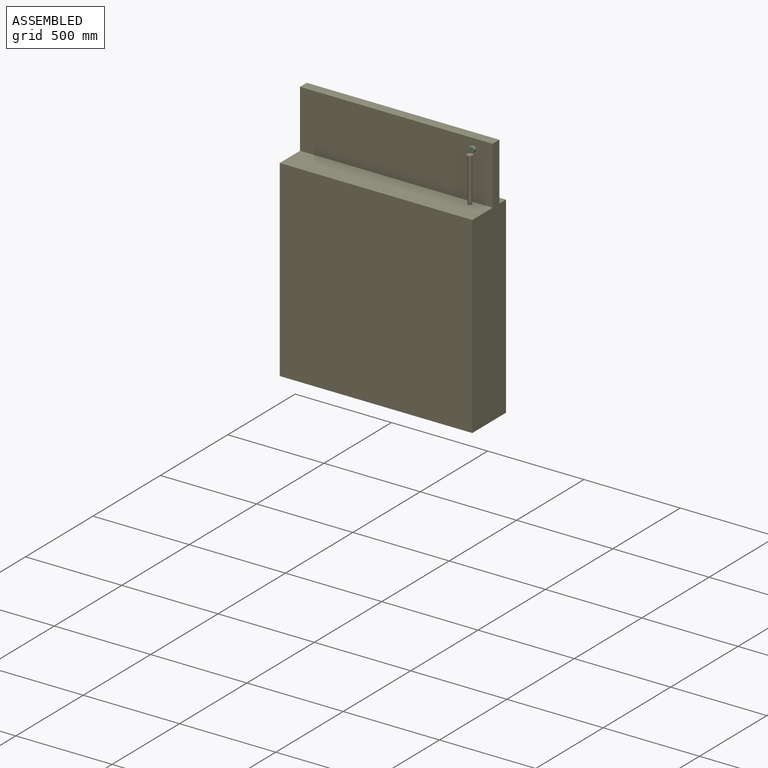
[diagram: assembled view]
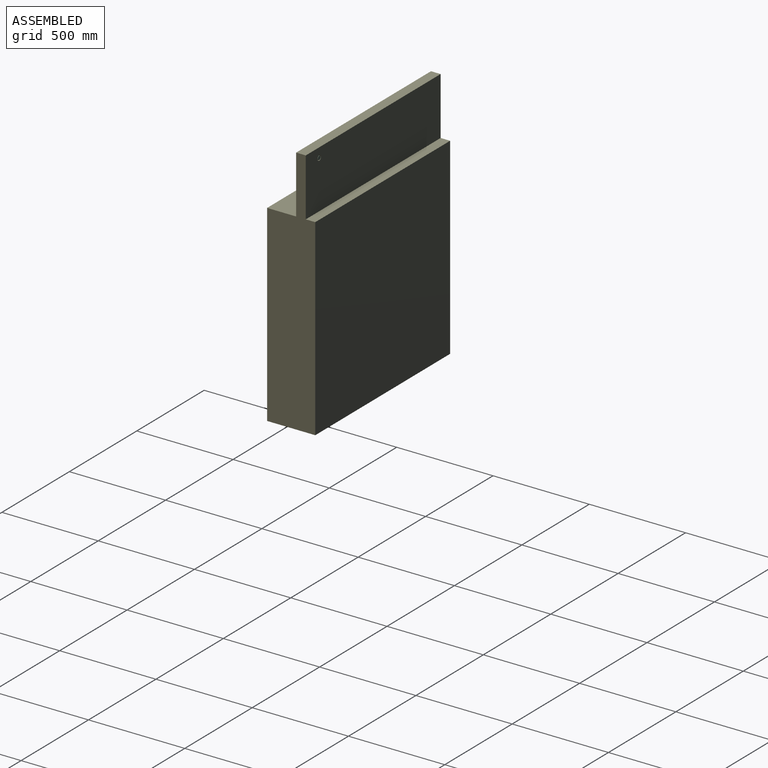
[diagram: assembled view, second angle]
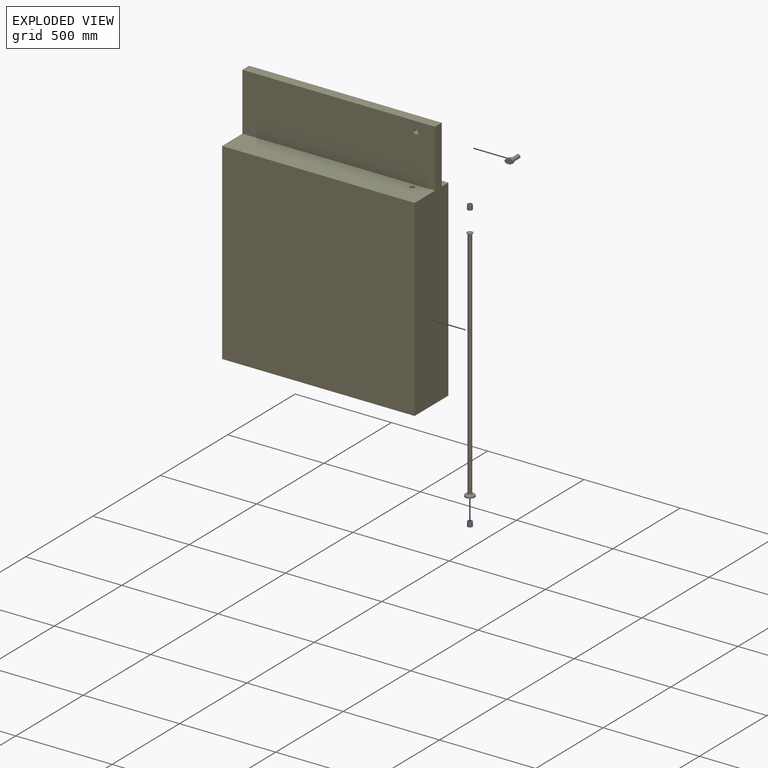
[diagram: exploded view]
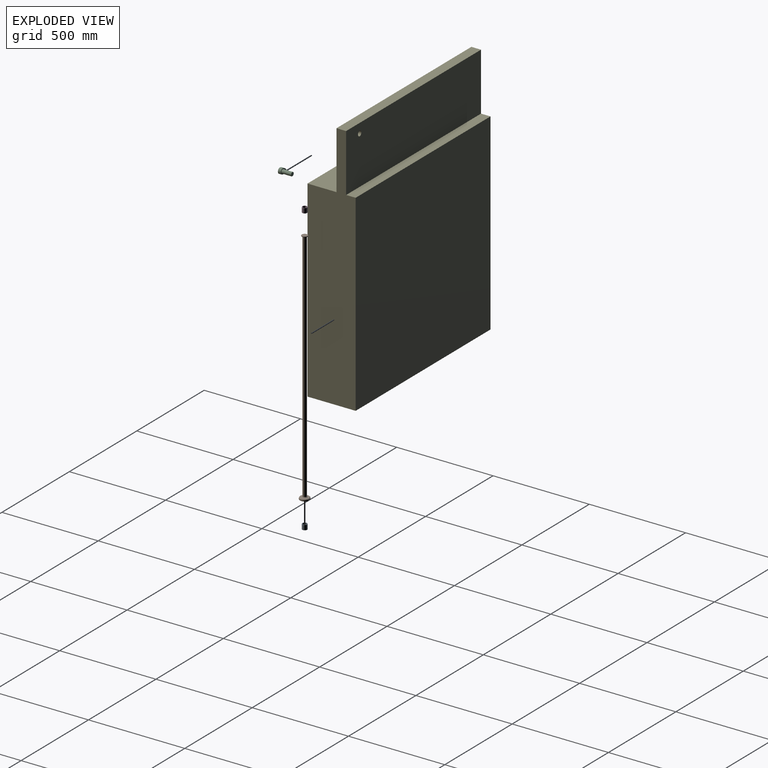
[diagram: exploded view, second angle]
ASSEMBLY  parts=5 mates=4
PART A: 4 faces, bbox 25x25x25 mm
  f0: cylinder r=10mm len=25mm, axis (0,0,-1), area 1570.8mm2, adj f2,f3
  f1: cylinder r=12.5mm len=25mm, axis (0,0,-1), area 1963.5mm2, adj f2,f3
  f2: plane 25x25mm, normal (0,0,1), area 176.7mm2, adj f0,f1
  f3: plane 25x25mm, normal (0,0,-1), area 176.7mm2, adj f0,f1
PART B: 13 faces, bbox 54.1x54.1x1238 mm
  f0: cylinder r=25mm len=50mm, axis (0,0,-1), area 781.6mm2, adj f3,f8
  f1: cylinder r=10mm len=1220mm, axis (0,0,-1), area 76654.9mm2, adj f4,f12
  f2: plane 40x40mm, normal (0,0,-1), area 549.8mm2, adj f3,f4
  f3: torus R=20mm, axis (0,0,1), area 1144mm2, adj f0,f2
  f4: torus R=15mm, axis (0,0,1), area 583.1mm2, adj f1,f2
  f5: plane 49.95x49.95mm, normal (0,0,1), area 1082.1mm2, adj f8,f9
  f6: plane 23.38x23.38mm, normal (0,0,1), area 429.3mm2, adj f7
  f7: torus R=11.69mm, axis (0,0,1), area 731.4mm2, adj f6,f9
  f8: torus R=24.98mm, axis (0,0,1), area 6mm2, adj f0,f5
  f9: torus R=16.71mm, axis (0,0,1), area 4mm2, adj f5,f7
  f10: cylinder r=15mm len=30mm, axis (0,0,1), area 282.7mm2, adj f11,f12
  f11: plane 30x30mm, normal (0,0,-1), area 706.9mm2, adj f10
  f12: plane 30x30mm, normal (0,0,1), area 392.7mm2, adj f1,f10
PART C: 8 faces, bbox 28.6x42.3x65 mm
  f0: cylinder r=10mm len=50mm, axis (0,0,-1), area 3141.6mm2, adj f1,f7
  f1: plane 20x20mm, normal (0,0,-1), area 314.2mm2, adj f0
  f2: plane 15x0.06mm, normal (0,1,0), area 1mm2, adj f3,f5,f6,f7
  f3: extruded ~28.62x28.1mm, area 1025.7mm2, adj f2,f4,f6,f7
  f4: plane 15x0.06mm, normal (0,1,0), area 1mm2, adj f3,f5,f6,f7
  f5: cylinder r=14.25mm len=28.49mm, axis (0,0,-1), area 671.3mm2, adj f2,f4,f6,f7
  f6: plane 42.34x28.62mm, normal (0,0,1), area 950.4mm2, adj f2,f3,f4,f5
  f7: plane 42.34x28.62mm, normal (0,0,-1), area 636.2mm2, adj f0,f2,f3,f4,f5
PART D: 4 faces, bbox 25x25x25 mm
  f0: cylinder r=10mm len=25mm, axis (0,0,-1), area 1570.8mm2, adj f2,f3
  f1: cylinder r=12.5mm len=25mm, axis (0,0,-1), area 1963.5mm2, adj f2,f3
  f2: plane 25x25mm, normal (0,0,1), area 176.7mm2, adj f0,f1
  f3: plane 25x25mm, normal (0,0,-1), area 176.7mm2, adj f0,f1
PART E: 15 faces, bbox 1000x1300x250 mm
  f0: cylinder r=12.5mm len=980mm, axis (0,1,0), area 76969mm2, adj f1,f12
  f1: plane 1000x150.68mm, normal (0,1,0), area 150185.7mm2, adj f0,f3,f5,f6,f8
  f2: plane 1000x49.32mm, normal (0,1,0), area 49323.4mm2, adj f3,f5,f7,f9
  f3: plane 1300x250mm, normal (-1,0,0), area 265000mm2, adj f1,f2,f4,f6,f7,f8,f9,f10
  f4: plane 1000x250mm, normal (0,-1,0), area 248036.5mm2, adj f3,f5,f6,f7,f13
  f5: plane 1300x250mm, normal (1,0,0), area 265000mm2, adj f1,f2,f4,f6,f7,f8,f9,f10
  f6: plane 1000x1000mm, normal (0,0,1), area 1000000mm2, adj f1,f3,f4,f5
  f7: plane 1000x1000mm, normal (0,0,-1), area 1000000mm2, adj f2,f3,f4,f5
  f8: plane 1000x300mm, normal (0,0,1), area 299509.1mm2, adj f1,f3,f5,f10,f11
  f9: plane 1000x300mm, normal (0,0,-1), area 299509.1mm2, adj f2,f3,f5,f10,f11
  f10: plane 1000x50mm, normal (0,1,0), area 50000mm2, adj f3,f5,f8,f9
  f11: cylinder r=12.5mm len=50mm, axis (0,0,1), area 3927mm2, adj f8,f9
  f12: plane 40x40mm, normal (0,-1,0), area 765.8mm2, adj f0,f14
  f13: cylinder r=25mm len=50mm, axis (0,-1,0), area 2356.2mm2, adj f4,f14
  f14: torus R=20mm, axis (0,-1,0), area 1144mm2, adj f12,f13
PLACE A t=(1005.23,234.28,-419.49)mm
PLACE B rot(axis=(1,0,0),180deg) t=(977.87,257.33,790.17)mm
PLACE C rot(axis=(0.68,0.52,-0.52),111.8deg) t=(977.87,333.01,810.51)mm
PLACE D t=(944.21,236.51,535.51)mm
PLACE E rot(axis=(1,0,0),90deg) t=(1033.35,382.33,-400.3)mm fixed
MATE slider E.f0 <-> B.f0  axis (0,0,-1) through (977.87,257.33,-439.49)mm
MATE fastened E.f0 <-> A.f0  axis (0,0,1) through (977.87,257.33,-419.49)mm
MATE fastened D.f0 <-> E.f0  axis (0,0,1) through (977.87,257.33,560.51)mm
MATE revolute C.f5 <-> E.f11  axis (0,1,0) through (977.87,283.01,810.51)mm
